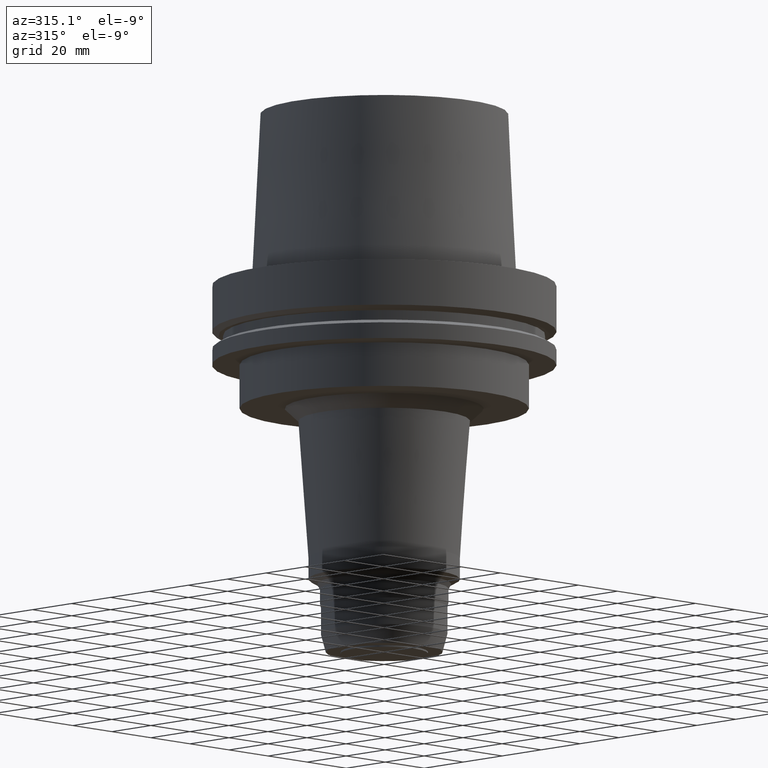
[diagram: clean part render]
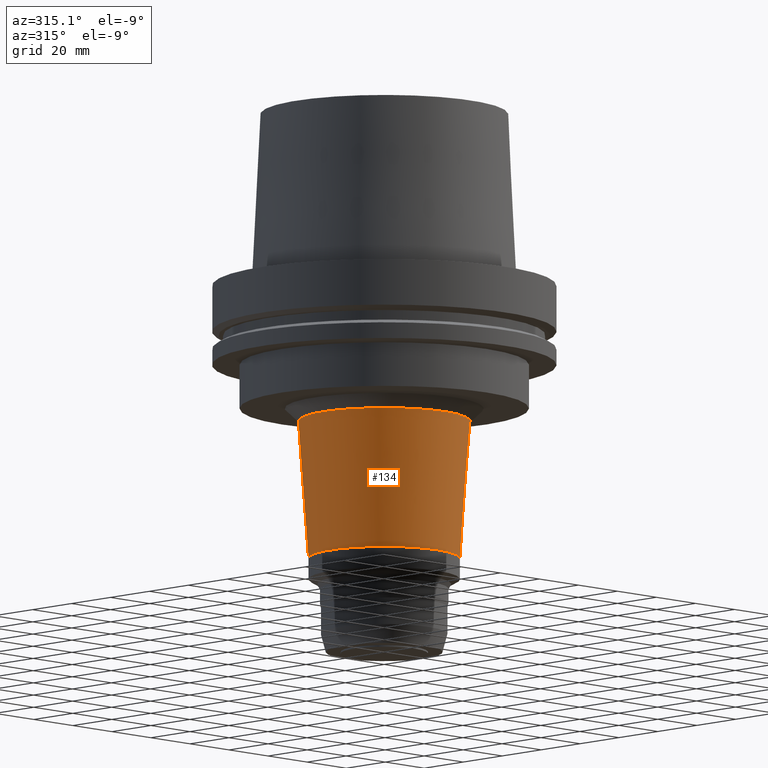
[diagram: same view with one face highlighted and labeled with its STEP entity id]
A machine part, auxiliary view. The second image highlights one B-rep face of the part: STEP entity #134.
In plain terms, the highlighted conical surface has half-angle 4.16 deg.
Its self-contained STEP definition (entity closure, byte-faithful):
#126=EDGE_CURVE('Unnamed[1]',#298,#298,#299,.T.);
#134=ADVANCED_FACE('Unnamed[1]',(#310,#311),#312,.T.);
#181=EDGE_CURVE('Unnamed[1]',#385,#385,#386,.T.);
#298=VERTEX_POINT('',#522);
#299=CIRCLE('',#523,27.5000000000004);
#310=FACE_BOUND('',#537,.T.);
#311=FACE_BOUND('',#538,.T.);
#312=CONICAL_SURFACE('',#539,29.3313701265056,0.0725994537304328);
#385=VERTEX_POINT('',#632);
#386=CIRCLE('',#633,31.1627402530107);
#522=CARTESIAN_POINT('',(6.12323399573922E-015,27.5000000000004,-100.00000000004));
#523=AXIS2_PLACEMENT_3D('',#758,#759,#760);
#537=EDGE_LOOP('',(#771));
#538=EDGE_LOOP('',(#772));
#539=AXIS2_PLACEMENT_3D('',#773,#774,#775);
#632=CARTESIAN_POINT('',(3.03940934595354E-015,31.1627402530107,-49.6373215211062));
#633=AXIS2_PLACEMENT_3D('',#854,#855,#856);
#758=CARTESIAN_POINT('',(6.12323399573922E-015,1.22464679914784E-014,-100.00000000004));
#759=DIRECTION('',(6.12323399573677E-017,1.22464679914735E-016,-1.0));
#760=DIRECTION('',(-1.23259516440783E-032,1.0,1.22464679914735E-016));
#771=ORIENTED_EDGE('',*,*,#126,.F.);
#772=ORIENTED_EDGE('',*,*,#181,.T.);
#773=CARTESIAN_POINT('',(4.58132167084638E-015,9.16264334169275E-015,-74.8186607605731));
#774=DIRECTION('',(-6.12323399573677E-017,-1.22464679914735E-016,1.0));
#775=DIRECTION('',(-1.23259516440783E-032,1.0,1.22464679914735E-016));
#854=CARTESIAN_POINT('',(3.03940934595354E-015,6.07881869190708E-015,-49.6373215211062));
#855=DIRECTION('',(6.12323399573676E-017,1.22464679914735E-016,-1.0));
#856=DIRECTION('',(-1.23259516440783E-032,1.0,1.22464679914735E-016));